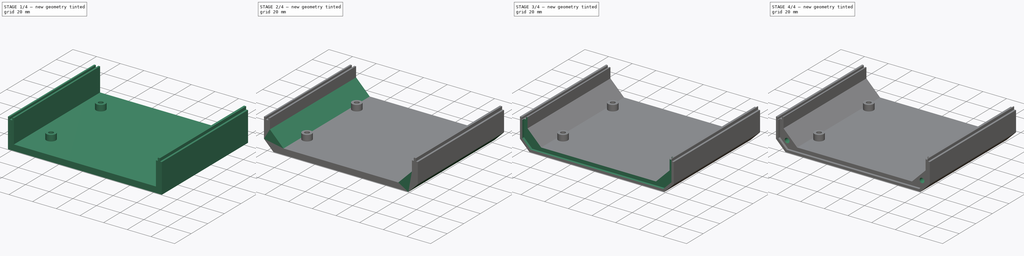
[diagram: build sequence overview — one tinted view per stage of 4, left to right]
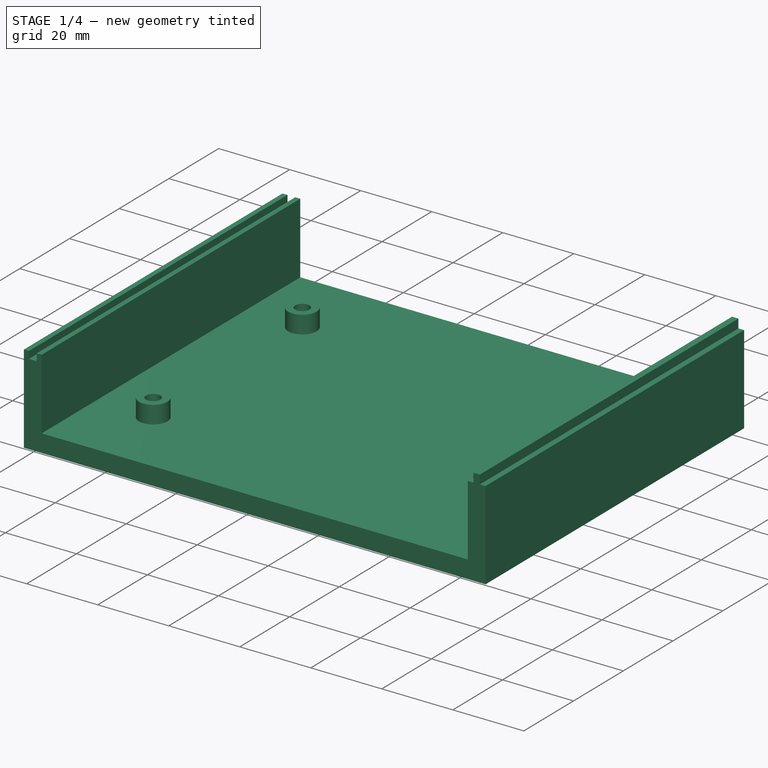
[diagram: stage 1 of 4 — iso view after this stage's code; geometry added in this stage tinted green]
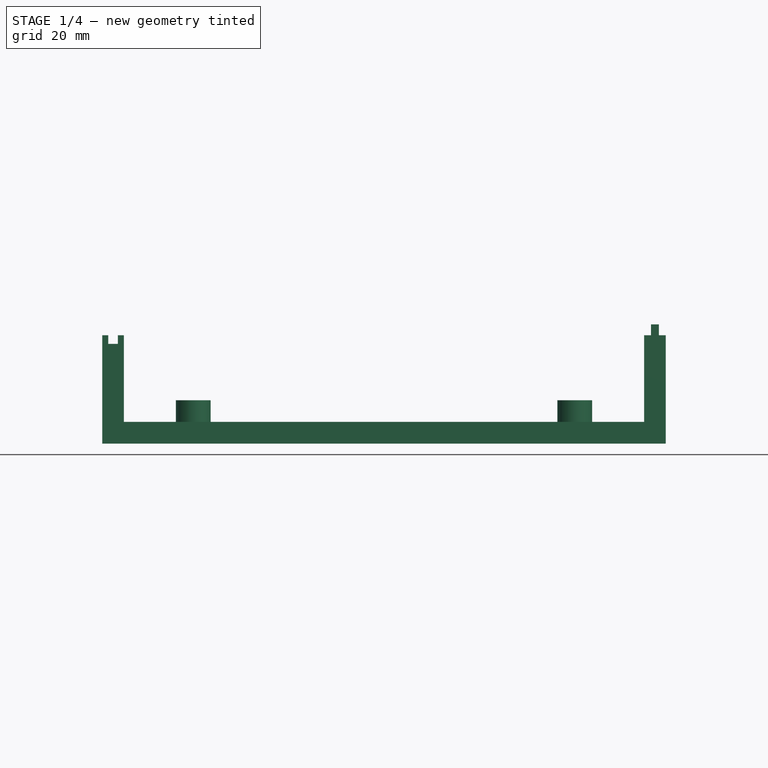
[diagram: stage 1 of 4 — front view after this stage's code; geometry added in this stage tinted green]
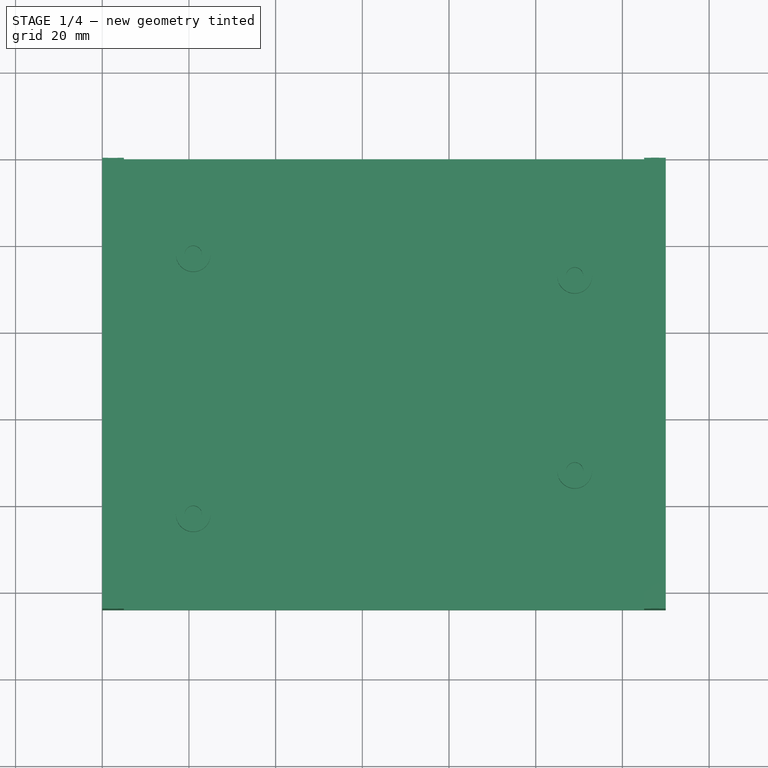
[diagram: stage 1 of 4 — top view after this stage's code; geometry added in this stage tinted green]
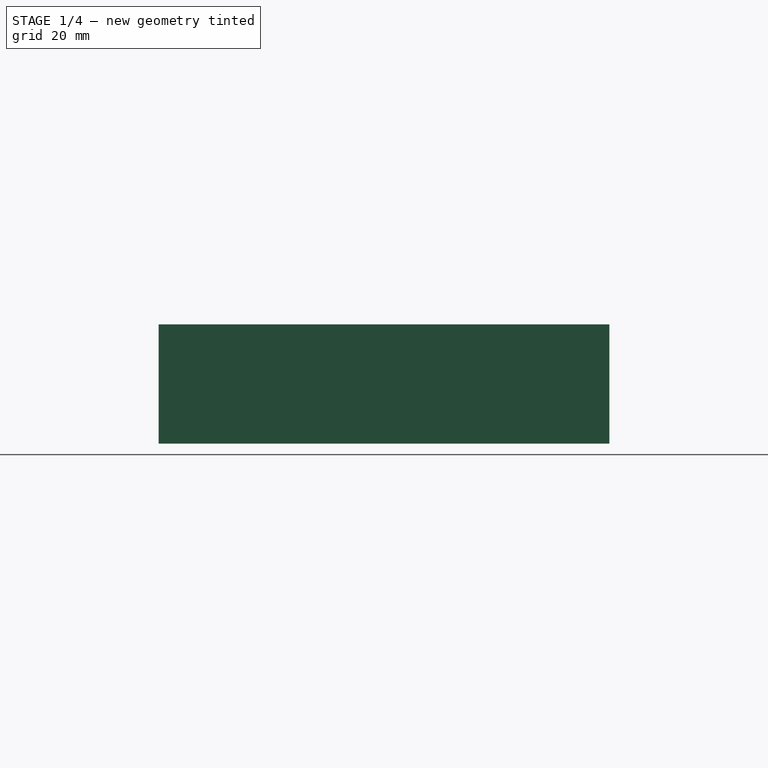
[diagram: stage 1 of 4 — right view after this stage's code; geometry added in this stage tinted green]
FCSTD DOCUMENT  (FreeCAD 0.21R33771 (Git))
Label: Enclosure-xoverfilter-slated
License: All rights reserved
LicenseURL: http://en.wikipedia.org/wiki/All_rights_reserved
objects: Part::Feature×10, App::Part×10, Sketcher::SketchObject×6, PartDesign::Pocket×4, PartDesign::Pad×2, PartDesign::Chamfer×2, PartDesign::Fillet×1, PartDesign::Body×1
note: 35 computed .brp shape members not serialized (recipe doc carries the construction recipe); baked Part::Feature solids carry a one-line shape summary decoded from their .brp

FEATURE [Part::Feature] Part__Feature  label="COMPOUND"
  shape: bbox 20.4 x 32.4 x 19.8 mm, 162 faces, 3 solids (baked)
FEATURE [App::Part] CUI_DEVICES_RCJ_2223  label="CUI_DEVICES_RCJ-2223"
  Group = -> [Part__Feature]
  Origin = -> Origin001
  Placement = pos=(170,-51.5999,16.13) rot=(0,0.707107,0.707107;3.14159rad)
FEATURE [Part::Feature] Part__Feature001  label="COMPOUND001"
  shape: bbox 20.4 x 32.4 x 19.8 mm, 162 faces, 3 solids (baked)
FEATURE [App::Part] CUI_DEVICES_RCJ_2224  label="CUI_DEVICES_RCJ-2224"
  Group = -> [Part__Feature001]
  Origin = -> Origin002
  Placement = pos=(110,-51.4999,16.13) rot=(0,0.707107,0.707107;3.14159rad)
FEATURE [Part::Feature] Part__Feature002  label="SOLID"
  shape: bbox 14.5 x 17.54 x 12.69 mm, 62 faces (baked)
FEATURE [App::Part] CUI_DEVICES_RCJ_016  label="CUI_DEVICES_RCJ-016"
  Group = -> [Part__Feature002]
  Origin = -> Origin003
  Placement = pos=(150,-57.7999,8.13) rot=(0.57735,0.57735,0.57735;2.0944rad)
FEATURE [Part::Feature] Part__Feature003  label="SOLID001"
  shape: bbox 32.1 x 14.86 x 9.66 mm, 248 faces (baked)
FEATURE [App::Part] ptd904_xx15f_xxxx  label="ptd904-xx15f-xxxx"
  Group = -> [Part__Feature003]
  Origin = -> Origin004
  Placement = pos=(160.04,-140.3,8.13) rot=(0.57735,-0.57735,-0.57735;2.0944rad)
FEATURE [Part::Feature] Part__Feature004  label="COMPOUND002"
  shape: bbox 9.77 x 14.38 x 14.62 mm, 201 faces, 6 solids (baked)
FEATURE [App::Part] DC_barrel_jack5_5mm_2_1mm
  Group = -> [Part__Feature004]
  Origin = -> Origin005
  Placement = pos=(129.957,-49.4999,7.63) rot=(0,0.707107,0.707107;3.14159rad)
FEATURE [Part::Feature] Part__Feature005  label="COMPOUND003"
  shape: bbox 3.534 x 3.928 x 26.38 mm, 57 faces, 3 solids (baked)
FEATURE [App::Part] LED_3mm_Blue_21mm_Leads  label="LED 3mm Blue 21mm Leads"
  Group = -> [Part__Feature005]
  Origin = -> Origin006
  Placement = pos=(84.9749,-130,7.63) rot=(0,-1,1;3.14159rad)
FEATURE [Part::Feature] Part__Feature006  label="COMPOUND004"
  shape: bbox 20.4 x 32.4 x 19.8 mm, 162 faces, 3 solids (baked)
FEATURE [App::Part] CUI_DEVICES_RCJ_2225  label="CUI_DEVICES_RCJ-2225"
  Group = -> [Part__Feature006]
  Origin = -> Origin007
  Placement = pos=(89.9999,-51.4999,16.13) rot=(0,0.707107,0.707107;3.14159rad)
FEATURE [Part::Feature] Part__Feature007  label="SOLID002"
  shape: bbox 12.7 x 14.6 x 36.46 mm, 394 faces (baked)
FEATURE [App::Part] _00DPXT1B1M6xE  label="100DPXT1B1M6xE"
  Group = -> [Part__Feature007]
  Origin = -> Origin008
  Placement = pos=(99.9599,-138.8,7.43) rot=(0,-0.707107,0.707107;3.14159rad)
FEATURE [Part::Feature] Part__Feature008  label="SOLID003"
  shape: bbox 32.1 x 14.86 x 9.66 mm, 248 faces (baked)
FEATURE [App::Part] ptd904_xx15f_xxxx001  label="ptd904-xx15f-xxxx001"
  Group = -> [Part__Feature008]
  Origin = -> Origin009
  Placement = pos=(129.96,-140.3,8.13) rot=(0.57735,-0.57735,-0.57735;2.0944rad)
FEATURE [Part::Feature] Part__Feature009  label="PCB"
  shape: bbox 100 x 100 x 1.58 mm, 350 faces (baked)
FEATURE [App::Part] xoverfilter_1  label="xoverfilter 1"
  Group = -> [CUI_DEVICES_RCJ_2223,CUI_DEVICES_RCJ_2224,CUI_DEVICES_RCJ_016,ptd904_xx15f_xxxx,DC_barrel_jack5_5mm_2_1mm,LED_3mm_Blue_21mm_Leads,CUI_DEVICES_RCJ_2225,_00DPXT1B1M6xE,ptd904_xx15f_xxxx001,Part__Feature009]
  Origin = -> Origin010
  Placement = pos=(-64,48,10) rot=(0,0,1;0rad)
FEATURE [Sketcher::SketchObject] Sketch
  FullyConstrained = true
  MapMode = 5
  Placement = pos=(0,0,0) rot=(1,0,0;1.5708rad)
  Support = -> [XZ_Plane]
  sketch-geometry (16):
    g0: LineSegment StartX=0 StartY=0 StartZ=0 EndX=0 EndY=25 EndZ=0
    g1: LineSegment StartX=0 StartY=0 StartZ=0 EndX=130 EndY=0 EndZ=0
    g2: LineSegment StartX=130 StartY=0 StartZ=0 EndX=130 EndY=25 EndZ=0
    g3: LineSegment StartX=0 StartY=25 StartZ=0 EndX=1.4 EndY=25 EndZ=0
    g4: LineSegment StartX=130 StartY=25 StartZ=0 EndX=128.4 EndY=25 EndZ=0
    g5: LineSegment StartX=5 StartY=25 StartZ=0 EndX=5 EndY=5 EndZ=0
    g6: LineSegment StartX=125 StartY=25 StartZ=0 EndX=125 EndY=5 EndZ=0
    g7: LineSegment StartX=5 StartY=5 StartZ=0 EndX=125 EndY=5 EndZ=0
    g8: LineSegment StartX=1.4 StartY=25 StartZ=0 EndX=1.4 EndY=23 EndZ=0
    g9: LineSegment StartX=1.4 StartY=23 StartZ=0 EndX=3.6 EndY=23 EndZ=0
    g10: LineSegment StartX=3.6 StartY=23 StartZ=0 EndX=3.6 EndY=25 EndZ=0
    g11: LineSegment StartX=3.6 StartY=25 StartZ=0 EndX=5 EndY=25 EndZ=0
    g12: LineSegment StartX=126.6 StartY=25 StartZ=0 EndX=126.6 EndY=27.5 EndZ=0
    g13: LineSegment StartX=126.6 StartY=27.5 StartZ=0 EndX=128.4 EndY=27.5 EndZ=0
    g14: LineSegment StartX=128.4 StartY=27.5 StartZ=0 EndX=128.4 EndY=25 EndZ=0
    g15: LineSegment StartX=126.6 StartY=25 StartZ=0 EndX=125 EndY=25 EndZ=0
  constraints (47):
    c: Coincident(g0,g-1)
    c: PointOnObject(g0,g-2)
    c: Coincident(g1,g0)
    c: PointOnObject(g1,g-1)
    c: DistanceX(g1,g1) = 130
    c: DistanceY(g0,g0) = 25
    c: Coincident(g2,g1)
    c: Vertical(g2)
    c: DistanceY(g2,g2) = 25
    c: Coincident(g3,g0)
    c: Horizontal(g3)
    c: Coincident(g4,g2)
    c: Horizontal(g4)
    c: DistanceX(g15,g4) = 5
    c: DistanceX(g3,g11) = 5
    c: Coincident(g5,g11)
    c: Vertical(g5)
    c: Coincident(g6,g15)
    c: Vertical(g6)
    c: DistanceY(g6,g6) = 20
    c: DistanceY(g5,g5) = 20
    c: Coincident(g7,g5)
    c: Coincident(g7,g6)
    c: Vertical(g8)
    c: Coincident(g9,g8)
    c: Horizontal(g9)
    c: Coincident(g10,g9)
    c: Vertical(g10)
    c: Coincident(g3,g8)
    c: Coincident(g11,g10)
    c: DistanceY(g8,g3) = 2
    c: DistanceX(g8,g9) = 2.2
    c: DistanceX(g-1,g3) = 1.4
    c: Perpendicular(g7,g5)
    c: Perpendicular(g11,g10)
    c: Vertical(g12)
    c: Coincident(g13,g12)
    c: Horizontal(g13)
    c: Coincident(g14,g13)
    c: Vertical(g14)
    c: Coincident(g4,g14)
    c: Coincident(g15,g12)
    c: Perpendicular(g15,g12)
    c: DistanceX(g13,g13) = 1.8
    c: DistanceX(g4,g4) = 1.6
    c: DistanceY(g14,g14) = 2.5
    c: DistanceY(g12,g12) = 2.5
FEATURE [PartDesign::Pad] Pad
  Direction = (0,-1,-2e-16)
  Length = 104
  Length2 = 10
  Placement = pos=(0,0,0) rot=(1,0,0;1.5708rad)
  Profile = -> Sketch
  ReferenceAxis = -> Sketch [N_Axis]
  Type = 0
FEATURE [Sketcher::SketchObject] Sketch001
  FullyConstrained = true
  MapMode = 5
  Placement = pos=(1e-16,1.1e-15,5) rot=(0,0,1;3.14159rad)
  Support = -> [Pad]
  sketch-geometry (8):
    g0: Circle CenterX=-109 CenterY=72 CenterZ=0 NormalX=0 NormalY=0 NormalZ=1 AngleXU=0 Radius=4
    g1: Circle CenterX=-21 CenterY=82 CenterZ=0 NormalX=0 NormalY=0 NormalZ=1 AngleXU=0 Radius=4
    g2: Circle CenterX=-21 CenterY=22 CenterZ=0 NormalX=0 NormalY=0 NormalZ=1 AngleXU=0 Radius=4
    g3: Circle CenterX=-109 CenterY=27 CenterZ=0 NormalX=0 NormalY=0 NormalZ=1 AngleXU=0 Radius=4
    g4: Circle CenterX=-109 CenterY=72 CenterZ=0 NormalX=0 NormalY=0 NormalZ=1 AngleXU=0 Radius=2
    g5: Circle CenterX=-21 CenterY=82 CenterZ=0 NormalX=0 NormalY=0 NormalZ=1 AngleXU=0 Radius=2
    g6: Circle CenterX=-21 CenterY=22 CenterZ=0 NormalX=0 NormalY=0 NormalZ=1 AngleXU=0 Radius=2
    g7: Circle CenterX=-109 CenterY=27 CenterZ=0 NormalX=0 NormalY=0 NormalZ=1 AngleXU=0 Radius=2
  constraints (20):
    c: Diameter(g0) = 8
    c: Diameter(g1) = 8
    c: Diameter(g2) = 8
    c: Diameter(g3) = 8
    c: DistanceX(g0,g-1) = 109
    c: Vertical(g3,g0)
    c: DistanceX(g1,g-1) = 21
    c: Vertical(g1,g2)
    c: DistanceY(g-1,g3) = 27
    c: DistanceY(g-1,g0) = 72
    c: DistanceY(g-1,g2) = 22
    c: DistanceY(g-1,g1) = 82
    c: Coincident(g4,g0)
    c: Coincident(g5,g1)
    c: Coincident(g6,g2)
    c: Coincident(g7,g3)
    c: Diameter(g7) = 4
    c: Diameter(g4) = 4
    c: Diameter(g5) = 4
    c: Diameter(g6) = 4
FEATURE [PartDesign::Pad] Pad001
  BaseFeature = -> Pad
  Direction = (0,-2e-16,1)
  Length = 5
  Length2 = 10
  Placement = pos=(0,0,0) rot=(1,0,0;1.5708rad)
  Profile = -> Sketch001
  ReferenceAxis = -> Sketch001 [N_Axis]
  Type = 0
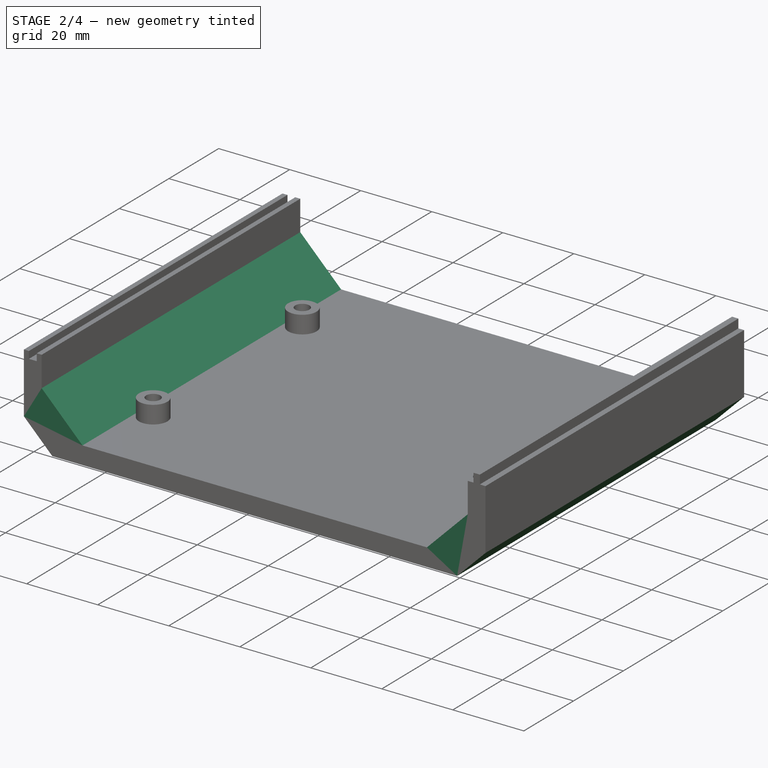
[diagram: stage 2 of 4 — iso view after this stage's code; geometry added in this stage tinted green]
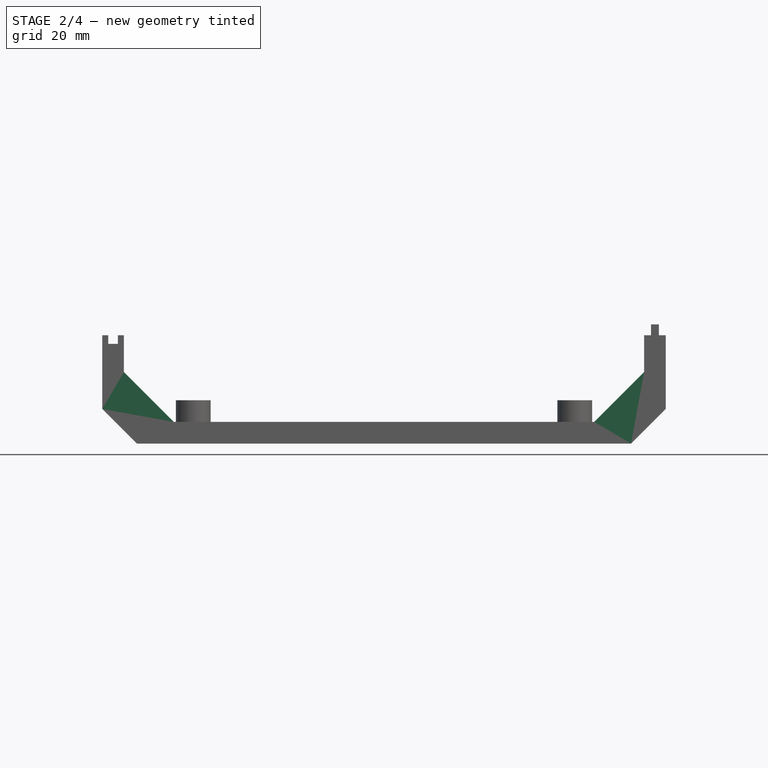
[diagram: stage 2 of 4 — front view after this stage's code; geometry added in this stage tinted green]
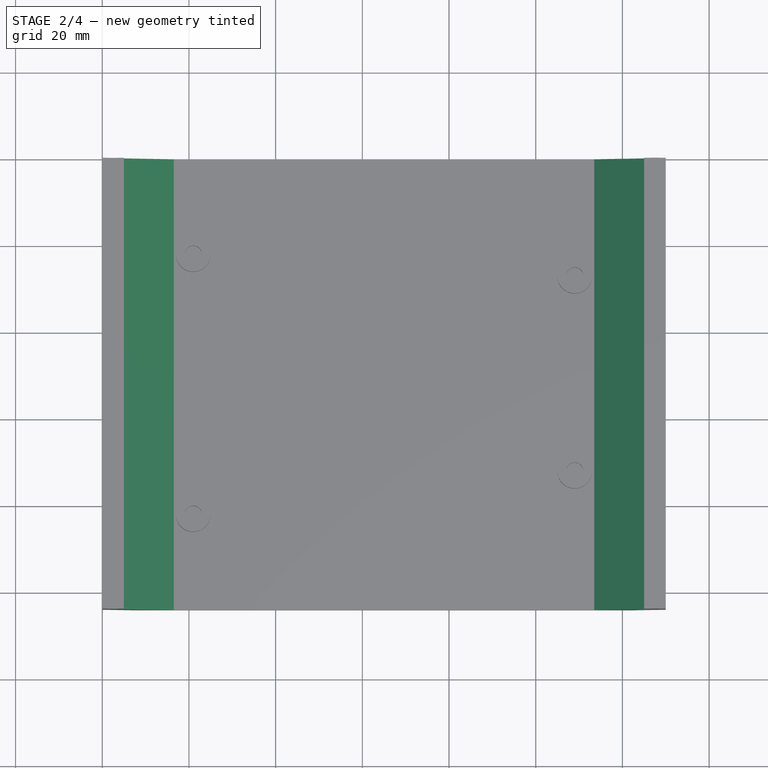
[diagram: stage 2 of 4 — top view after this stage's code; geometry added in this stage tinted green]
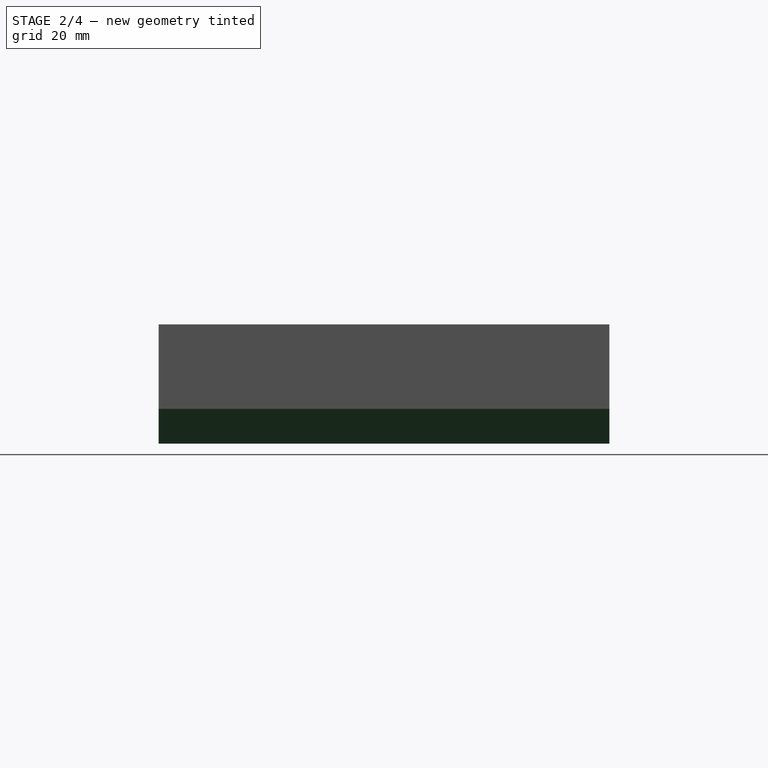
[diagram: stage 2 of 4 — right view after this stage's code; geometry added in this stage tinted green]
FEATURE [PartDesign::Chamfer] Chamfer
  Angle = 45
  Base = -> Pad001 [Edge48,Edge37]
  BaseFeature = -> Pad001
  ChamferType = 0
  FlipDirection = false
  Placement = pos=(0,0,0) rot=(1,0,0;1.5708rad)
  Size = 11.5
  Size2 = 1
  SupportTransform = false
  UseAllEdges = false
FEATURE [PartDesign::Chamfer] Chamfer001
  Angle = 45
  Base = -> Chamfer [Edge48,Edge52]
  BaseFeature = -> Chamfer
  ChamferType = 0
  FlipDirection = false
  Placement = pos=(0,0,0) rot=(1,0,0;1.5708rad)
  Size = 8
  Size2 = 1
  SupportTransform = false
  UseAllEdges = false
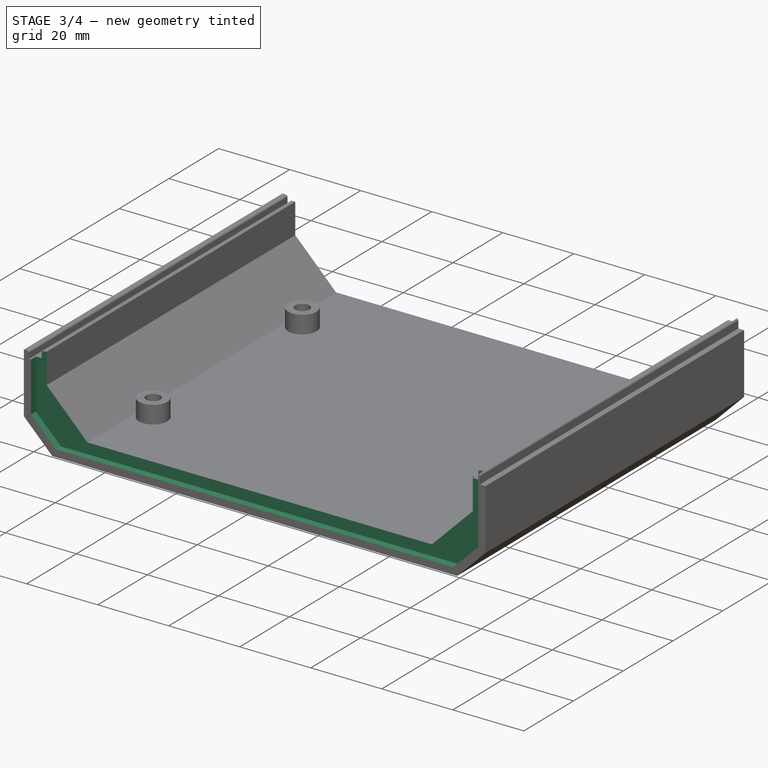
[diagram: stage 3 of 4 — iso view after this stage's code; geometry added in this stage tinted green]
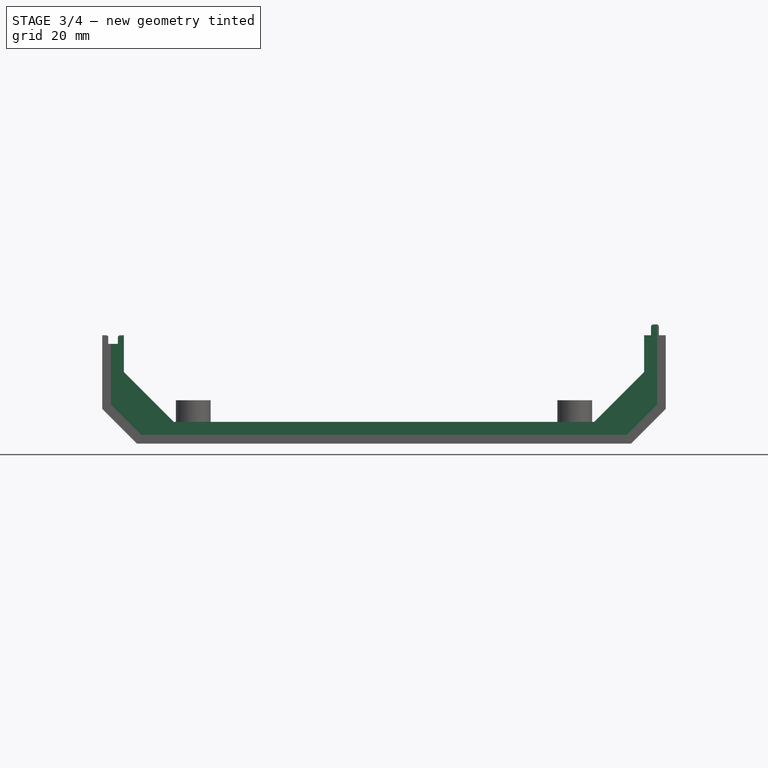
[diagram: stage 3 of 4 — front view after this stage's code; geometry added in this stage tinted green]
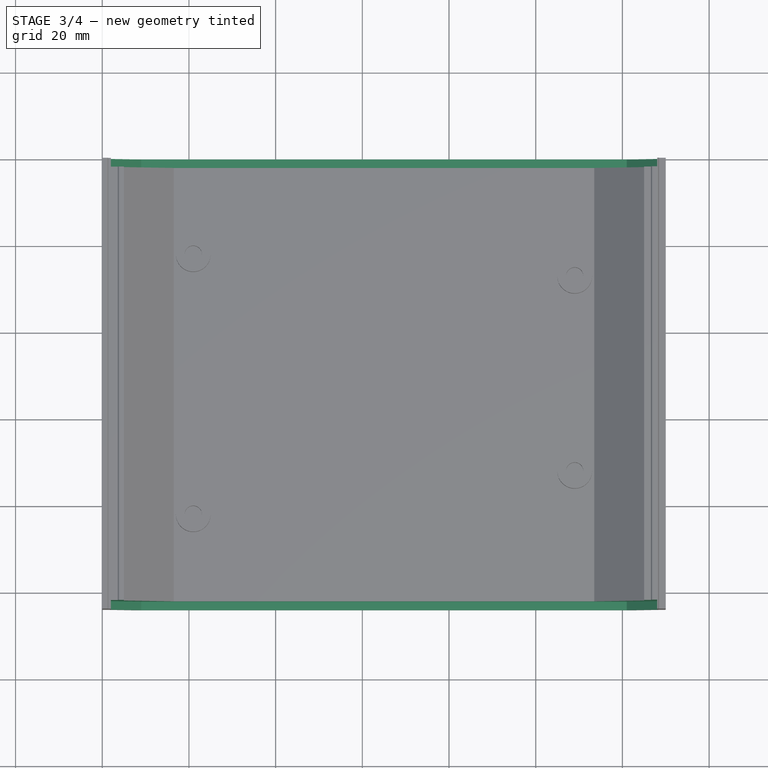
[diagram: stage 3 of 4 — top view after this stage's code; geometry added in this stage tinted green]
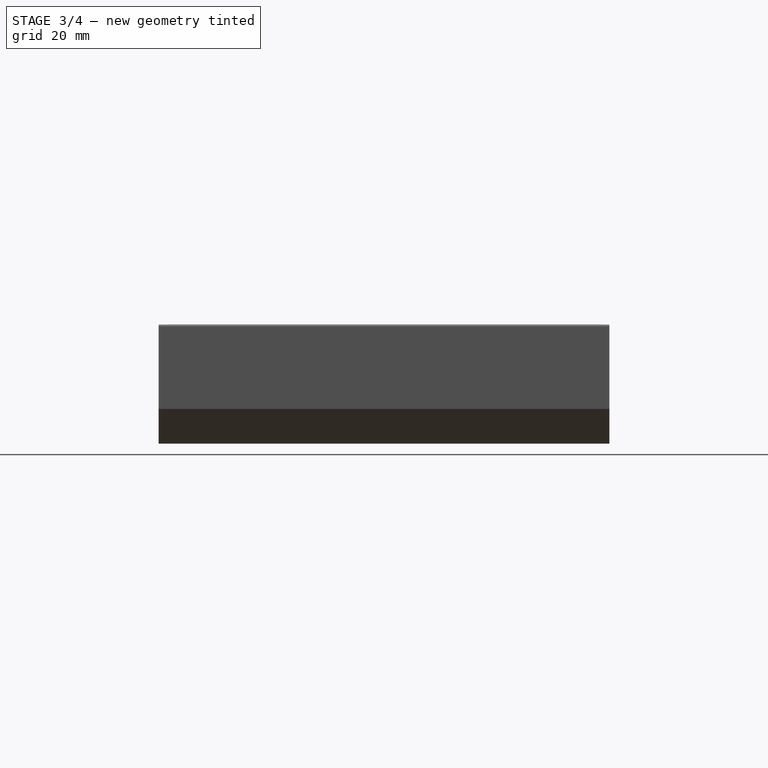
[diagram: stage 3 of 4 — right view after this stage's code; geometry added in this stage tinted green]
FEATURE [PartDesign::Fillet] Fillet
  Base = -> Chamfer001 [Edge48,Edge44,Edge38,Edge26]
  BaseFeature = -> Chamfer001
  Placement = pos=(0,0,0) rot=(1,0,0;1.5708rad)
  Radius = 0.5
  SupportTransform = false
  UseAllEdges = false
FEATURE [Sketcher::SketchObject] Sketch002
  FullyConstrained = true
  MapMode = 5
  Placement = pos=(0,0,0) rot=(1,0,0;1.5708rad)
  Support = -> [XZ_Plane]
  sketch-geometry (6):
    g0: LineSegment StartX=2 StartY=30 StartZ=0 EndX=2 EndY=9 EndZ=0
    g1: LineSegment StartX=2 StartY=9 StartZ=0 EndX=9 EndY=2 EndZ=0
    g2: LineSegment StartX=9 StartY=2 StartZ=0 EndX=121 EndY=2 EndZ=0
    g3: LineSegment StartX=121 StartY=2 StartZ=0 EndX=128 EndY=9 EndZ=0
    g4: LineSegment StartX=128 StartY=9 StartZ=0 EndX=128 EndY=30 EndZ=0
    g5: LineSegment StartX=128 StartY=30 StartZ=0 EndX=2 EndY=30 EndZ=0
  constraints (18):
    c: Vertical(g0)
    c: Coincident(g1,g0)
    c: Coincident(g2,g1)
    c: Horizontal(g2)
    c: Coincident(g3,g2)
    c: Coincident(g4,g3)
    c: Vertical(g4)
    c: Coincident(g5,g4)
    c: Horizontal(g5)
    c: Coincident(g0,g5)
    c: DistanceX(g-1,g0) = 2
    c: DistanceX(g5,g5) = 126
    c: DistanceY(g-1,g1) = 2
    c: Angle(g2,g1) = 2.35619
    c: Angle(g3,g2) = 2.35619
    c: DistanceY(g-1,g0) = 30
    c: DistanceY(g-1,g3) = 9
    c: Horizontal(g0,g3)
FEATURE [PartDesign::Pocket] Pocket
  BaseFeature = -> Fillet
  Direction = (0,1,2e-16)
  Length = 2
  Length2 = 5
  Placement = pos=(0,0,0) rot=(1,0,0;1.5708rad)
  Profile = -> Sketch002
  ReferenceAxis = -> Sketch002 [N_Axis]
  Reversed = true
  Type = 0
FEATURE [Sketcher::SketchObject] Sketch003
  FullyConstrained = true
  MapMode = 5
  Placement = pos=(0,-104,1.18e-14) rot=(1,0,0;1.5708rad)
  Support = -> [Pocket]
  sketch-geometry (6):
    g0: LineSegment StartX=2 StartY=30 StartZ=0 EndX=2 EndY=9 EndZ=0
    g1: LineSegment StartX=2 StartY=9 StartZ=0 EndX=9 EndY=2 EndZ=0
    g2: LineSegment StartX=9 StartY=2 StartZ=0 EndX=121 EndY=2 EndZ=0
    g3: LineSegment StartX=121 StartY=2 StartZ=0 EndX=128 EndY=9 EndZ=0
    g4: LineSegment StartX=128 StartY=9 StartZ=0 EndX=128 EndY=30 EndZ=0
    g5: LineSegment StartX=128 StartY=30 StartZ=0 EndX=2 EndY=30 EndZ=0
  constraints (18):
    c: Vertical(g0)
    c: Coincident(g1,g0)
    c: Coincident(g2,g1)
    c: Horizontal(g2)
    c: Coincident(g3,g2)
    c: Coincident(g4,g3)
    c: Vertical(g4)
    c: Coincident(g5,g4)
    c: Coincident(g5,g0)
    c: Horizontal(g5)
    c: DistanceY(g-1,g1) = 2
    c: DistanceX(g-1,g0) = 2
    c: DistanceX(g0,g4) = 126
    c: DistanceY(g-1,g4) = 30
    c: DistanceY(g-1,g0) = 9
    c: Angle(g2,g1) = 2.35619
    c: Angle(g3,g2) = 2.35619
    c: DistanceY(g-1,g3) = 9
FEATURE [PartDesign::Pocket] Pocket001
  BaseFeature = -> Pocket
  Direction = (0,1,-2e-16)
  Length = 2
  Length2 = 5
  Placement = pos=(0,0,0) rot=(1,0,0;1.5708rad)
  Profile = -> Sketch003
  ReferenceAxis = -> Sketch003 [N_Axis]
  Type = 0
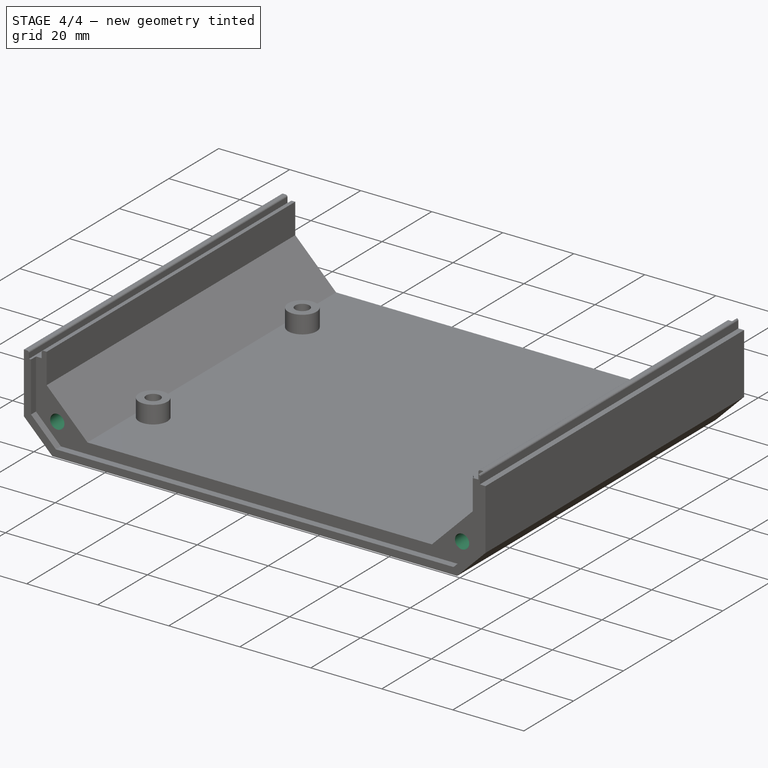
[diagram: stage 4 of 4 — iso view after this stage's code; geometry added in this stage tinted green]
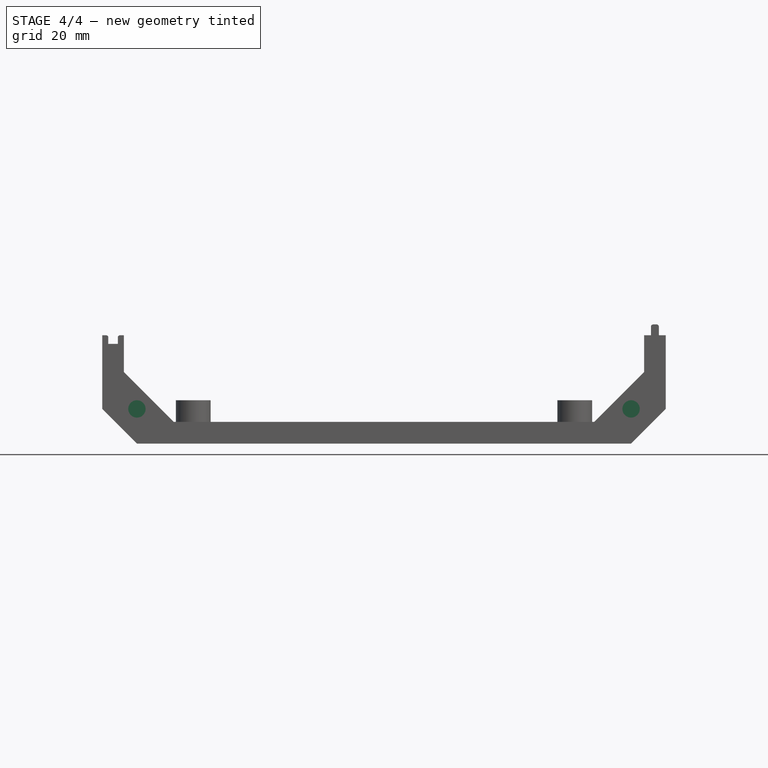
[diagram: stage 4 of 4 — front view after this stage's code; geometry added in this stage tinted green]
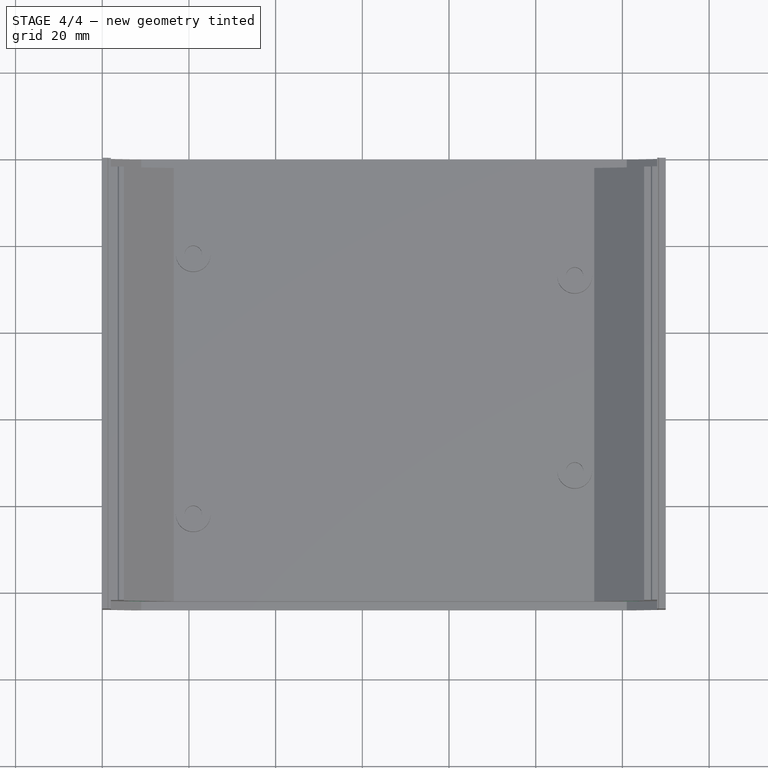
[diagram: stage 4 of 4 — top view after this stage's code; geometry added in this stage tinted green]
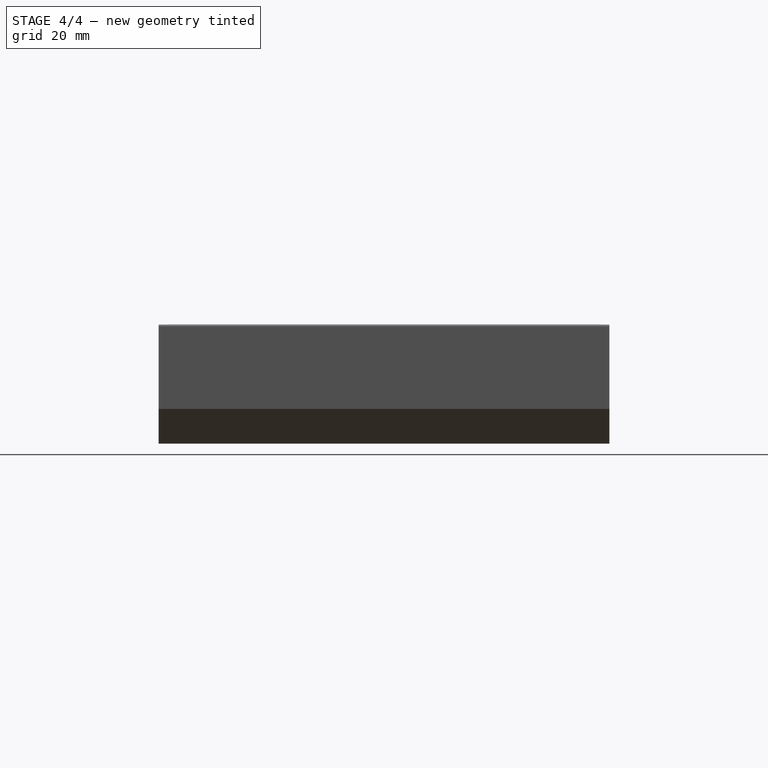
[diagram: stage 4 of 4 — right view after this stage's code; geometry added in this stage tinted green]
FEATURE [Sketcher::SketchObject] Sketch004
  FullyConstrained = true
  MapMode = 5
  Placement = pos=(0,-102,1.13e-14) rot=(1,0,0;1.5708rad)
  Support = -> [Pocket001]
  sketch-geometry (2):
    g0: Circle CenterX=8 CenterY=8 CenterZ=0 NormalX=0 NormalY=0 NormalZ=1 AngleXU=0 Radius=2
    g1: Circle CenterX=122 CenterY=8 CenterZ=0 NormalX=0 NormalY=0 NormalZ=1 AngleXU=0 Radius=2
  constraints (6):
    c: DistanceX(g-1,g0) = 8
    c: DistanceY(g-1,g0) = 8
    c: Horizontal(g0,g1)
    c: Diameter(g0) = 4
    c: Diameter(g1) = 4
    c: DistanceX(g-1,g1) = 122
FEATURE [PartDesign::Pocket] Pocket002
  BaseFeature = -> Pocket001
  Direction = (0,1,-2e-16)
  Length = 5.7
  Length2 = 5
  Placement = pos=(0,0,0) rot=(1,0,0;1.5708rad)
  Profile = -> Sketch004
  ReferenceAxis = -> Sketch004 [N_Axis]
  Type = 0
FEATURE [Sketcher::SketchObject] Sketch005
  FullyConstrained = true
  MapMode = 5
  Placement = pos=(0,-2,2e-16) rot=(-1,0,0;1.5708rad)
  Support = -> [Pocket002]
  sketch-geometry (2):
    g0: Circle CenterX=122 CenterY=-8 CenterZ=0 NormalX=0 NormalY=0 NormalZ=1 AngleXU=0 Radius=2
    g1: Circle CenterX=8 CenterY=-8 CenterZ=0 NormalX=0 NormalY=0 NormalZ=1 AngleXU=0 Radius=2
  constraints (6):
    c: DistanceX(g-1,g1) = 8
    c: DistanceY(g1,g-1) = 8
    c: Diameter(g1) = 4
    c: Diameter(g0) = 4
    c: Horizontal(g0,g1)
    c: DistanceX(g-1,g0) = 122
FEATURE [PartDesign::Pocket] Pocket003
  BaseFeature = -> Pocket002
  Direction = (0,-1,2e-16)
  Length = 5.7
  Length2 = 5
  Placement = pos=(0,0,0) rot=(1,0,0;1.5708rad)
  Profile = -> Sketch005
  ReferenceAxis = -> Sketch005 [N_Axis]
  Type = 0
FEATURE [PartDesign::Body] Body  label="Shell"
  Group = -> [Sketch,Pad,Sketch001,Pad001,Chamfer,Chamfer001,Fillet,Sketch002,Pocket,Sketch003,Pocket001,Sketch004,Pocket002,Sketch005,Pocket003]
  Origin = -> Origin
  Tip = -> Pocket003
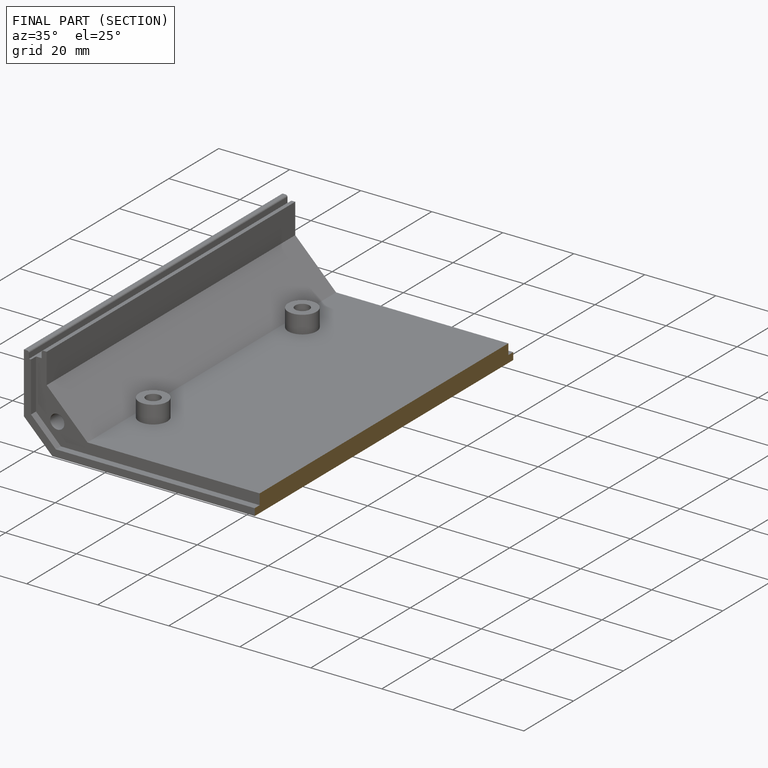
[diagram: finished part — half-section view (interior)]
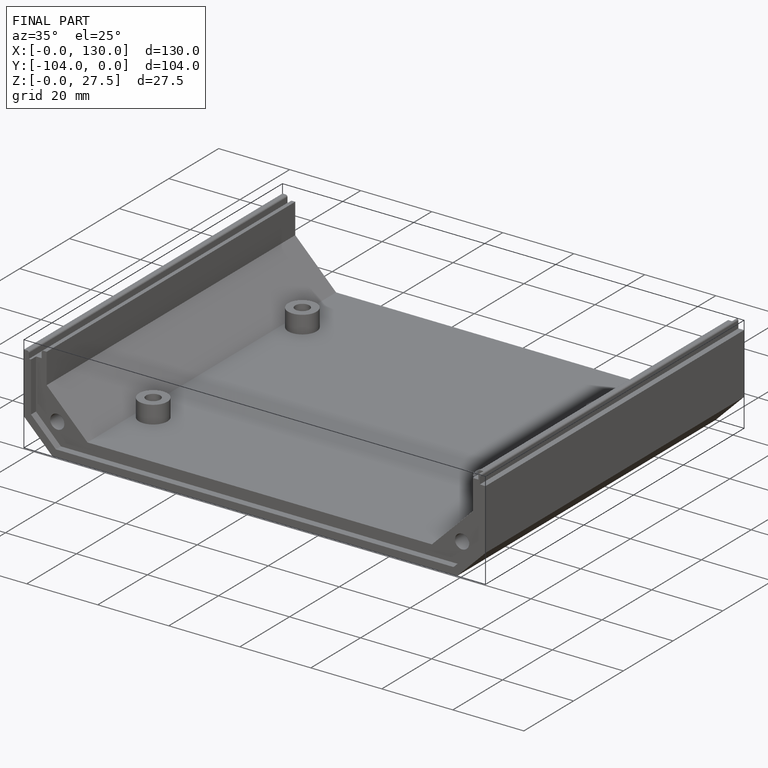
[diagram: finished part — iso view with bounding-box wireframe]
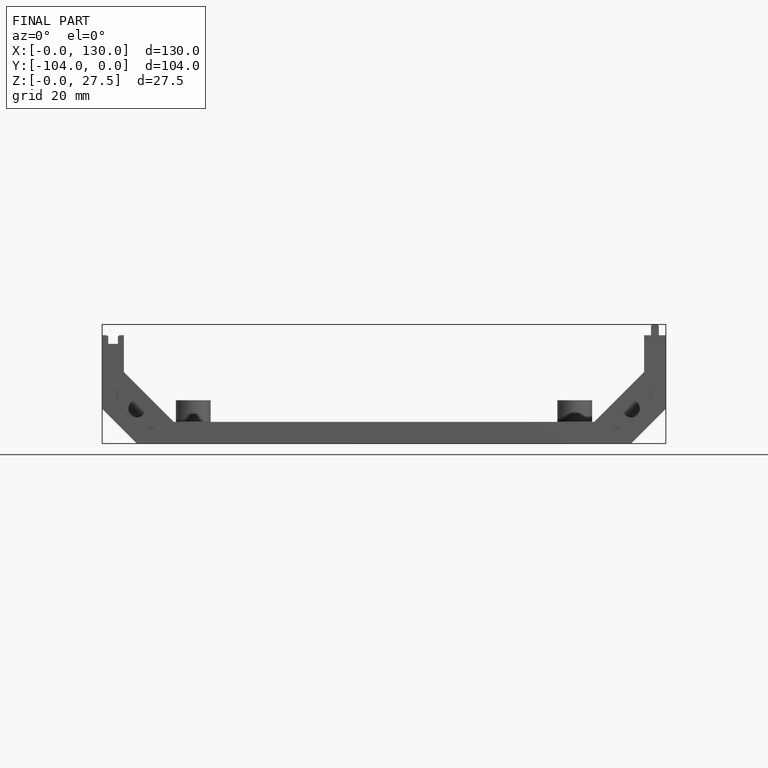
[diagram: finished part — front view with bounding-box wireframe]
